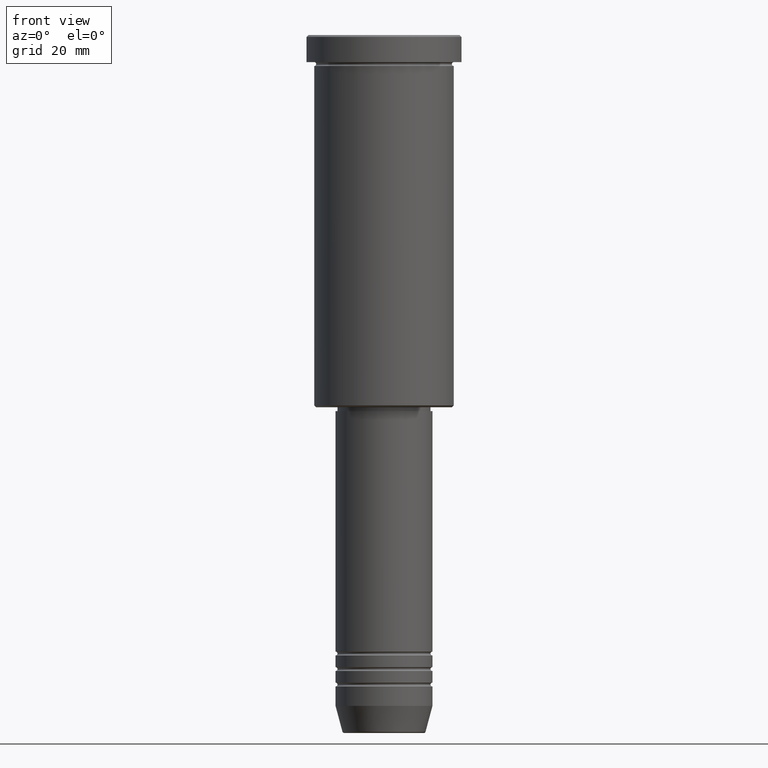
[diagram: clean part render]
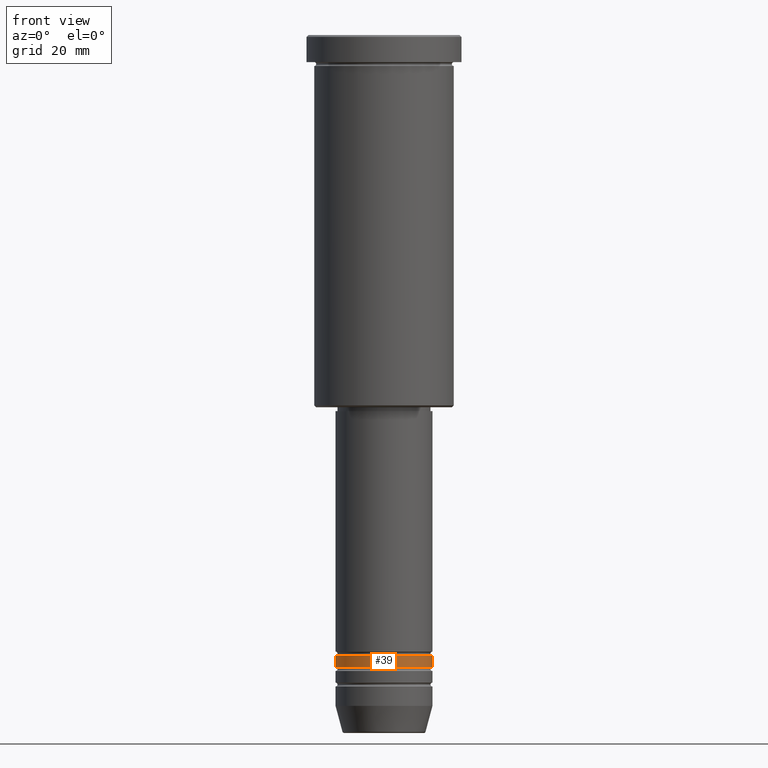
[diagram: same view with one face highlighted and labeled with its STEP entity id]
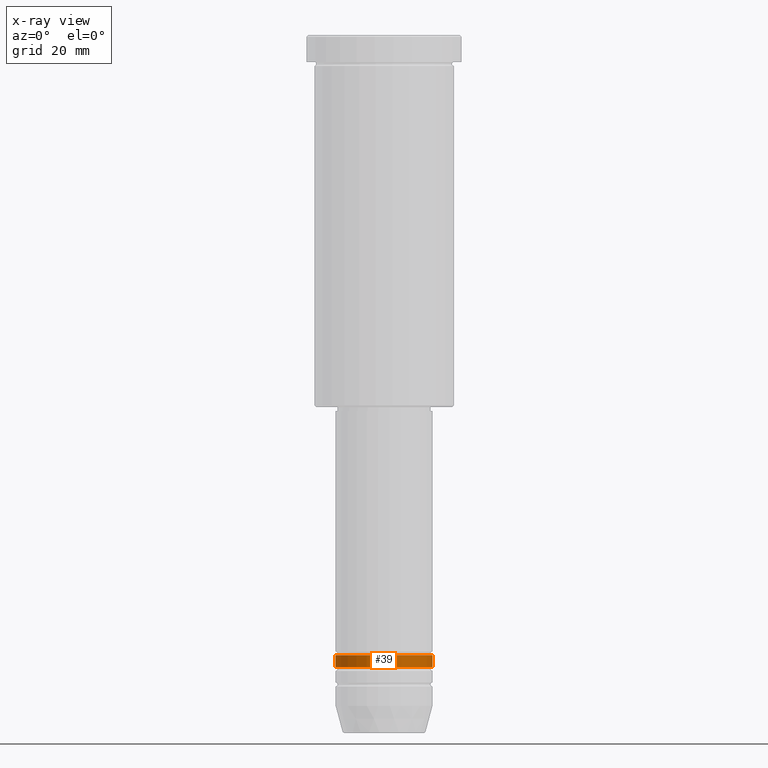
[diagram: x-ray of the same camera — body ghosted, the highlighted face saturated]
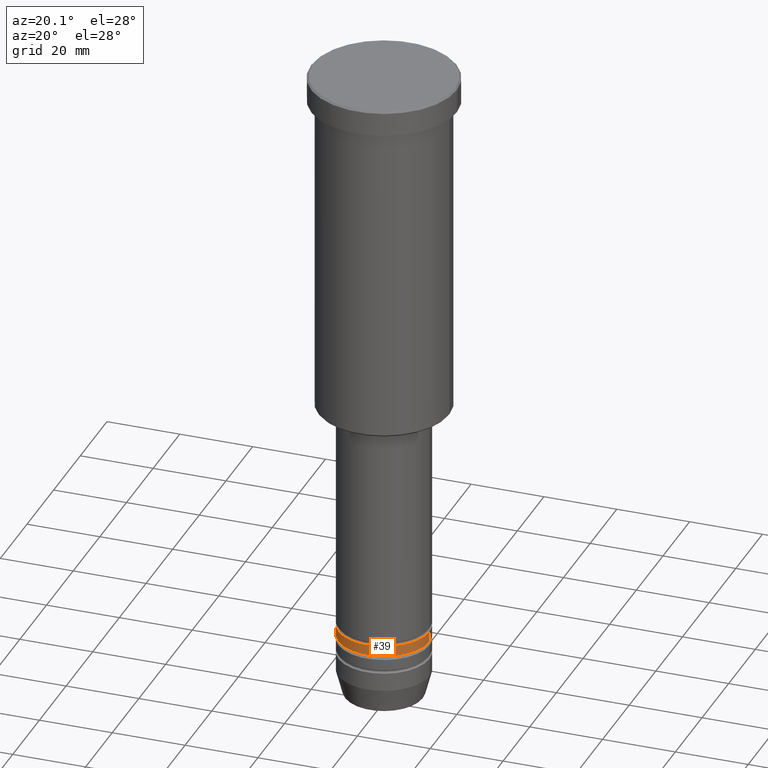
[diagram: same view with one face highlighted and labeled with its STEP entity id]
A machine part, front view. The second image highlights one B-rep face of the part: STEP entity #39.
The next image is the same camera in x-ray: the body ghosted, the highlighted face saturated — about 0% of this face is hidden behind the body in this view.
A second angle (auxiliary view) of the same face is appended — the face is thin or edge-on in the first view.
In plain terms, the highlighted cylindrical surface (partial cylindrical patch) has radius 12.5 mm, axis along (-0, -0, 1).
Its self-contained STEP definition (entity closure, byte-faithful):
#8 = DIRECTION ( 'NONE',  ( 1.000000000000000000, 0.000000000000000000, 0.000000000000000000 ) ) ;
#15 = LINE ( 'NONE', #1003, #1063 ) ;
#39 = ADVANCED_FACE ( 'NONE', ( #703 ), #884, .T. ) ;
#90 = DIRECTION ( 'NONE',  ( -0.000000000000000000, -0.000000000000000000, 1.000000000000000000 ) ) ;
#91 = CIRCLE ( 'NONE', #612, 12.50000000000000000 ) ;
#107 = CARTESIAN_POINT ( 'NONE',  ( 12.50000000000000000, 0.000000000000000000, -160.0000000000000000 ) ) ;
#116 = ORIENTED_EDGE ( 'NONE', *, *, #535, .F. ) ;
#141 = CARTESIAN_POINT ( 'NONE',  ( 12.50000000000000355, 0.000000000000000000, -163.0000000000000000 ) ) ;
#153 = ORIENTED_EDGE ( 'NONE', *, *, #195, .T. ) ;
#168 = DIRECTION ( 'NONE',  ( 1.000000000000000000, 0.000000000000000000, 0.000000000000000000 ) ) ;
#189 = VECTOR ( 'NONE', #466, 1000.000000000000000 ) ;
#195 = EDGE_CURVE ( 'NONE', #819, #527, #414, .T. ) ;
#206 = AXIS2_PLACEMENT_3D ( 'NONE', #239, #992, #641 ) ;
#218 = EDGE_CURVE ( 'NONE', #819, #693, #569, .T. ) ;
#239 = CARTESIAN_POINT ( 'NONE',  ( 0.000000000000000000, 0.000000000000000000, 0.000000000000000000 ) ) ;
#287 = CARTESIAN_POINT ( 'NONE',  ( -12.50000000000000178, 1.530808498934191719E-15, 0.000000000000000000 ) ) ;
#294 = VERTEX_POINT ( 'NONE', #107 ) ;
#414 = CIRCLE ( 'NONE', #514, 12.50000000000000355 ) ;
#466 = DIRECTION ( 'NONE',  ( -0.000000000000000000, -0.000000000000000000, 1.000000000000000000 ) ) ;
#514 = AXIS2_PLACEMENT_3D ( 'NONE', #645, #90, #8 ) ;
#527 = VERTEX_POINT ( 'NONE', #141 ) ;
#535 = EDGE_CURVE ( 'NONE', #693, #294, #91, .T. ) ;
#569 = LINE ( 'NONE', #287, #189 ) ;
#583 = CARTESIAN_POINT ( 'NONE',  ( -12.50000000000000533, 1.530808498934192113E-15, -163.0000000000000000 ) ) ;
#612 = AXIS2_PLACEMENT_3D ( 'NONE', #708, #618, #168 ) ;
#618 = DIRECTION ( 'NONE',  ( -0.000000000000000000, -0.000000000000000000, 1.000000000000000000 ) ) ;
#641 = DIRECTION ( 'NONE',  ( 1.000000000000000000, 0.000000000000000000, 0.000000000000000000 ) ) ;
#645 = CARTESIAN_POINT ( 'NONE',  ( 0.000000000000000000, 0.000000000000000000, -163.0000000000000000 ) ) ;
#651 = ORIENTED_EDGE ( 'NONE', *, *, #218, .F. ) ;
#693 = VERTEX_POINT ( 'NONE', #741 ) ;
#698 = EDGE_CURVE ( 'NONE', #527, #294, #15, .T. ) ;
#703 = FACE_OUTER_BOUND ( 'NONE', #1000, .T. ) ;
#708 = CARTESIAN_POINT ( 'NONE',  ( 0.000000000000000000, 0.000000000000000000, -160.0000000000000000 ) ) ;
#741 = CARTESIAN_POINT ( 'NONE',  ( -12.50000000000000000, 1.530808498934191719E-15, -160.0000000000000000 ) ) ;
#819 = VERTEX_POINT ( 'NONE', #583 ) ;
#822 = DIRECTION ( 'NONE',  ( -0.000000000000000000, -0.000000000000000000, 1.000000000000000000 ) ) ;
#884 = CYLINDRICAL_SURFACE ( 'NONE', #206, 12.50000000000000178 ) ;
#992 = DIRECTION ( 'NONE',  ( -0.000000000000000000, -0.000000000000000000, 1.000000000000000000 ) ) ;
#1000 = EDGE_LOOP ( 'NONE', ( #651, #153, #1118, #116 ) ) ;
#1003 = CARTESIAN_POINT ( 'NONE',  ( 12.50000000000000178, 0.000000000000000000, 0.000000000000000000 ) ) ;
#1063 = VECTOR ( 'NONE', #822, 1000.000000000000000 ) ;
#1118 = ORIENTED_EDGE ( 'NONE', *, *, #698, .T. ) ;